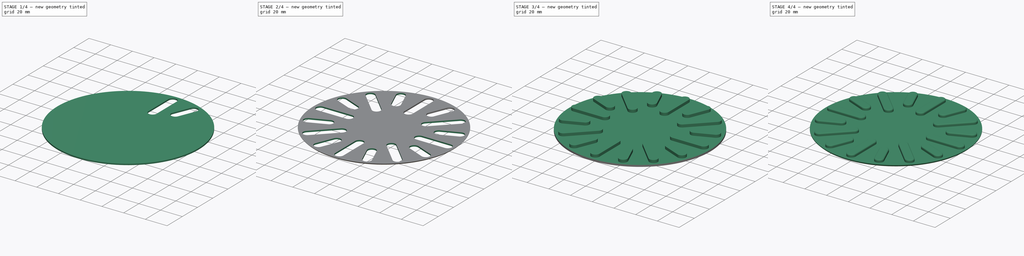
[diagram: build sequence overview — one tinted view per stage of 4, left to right]
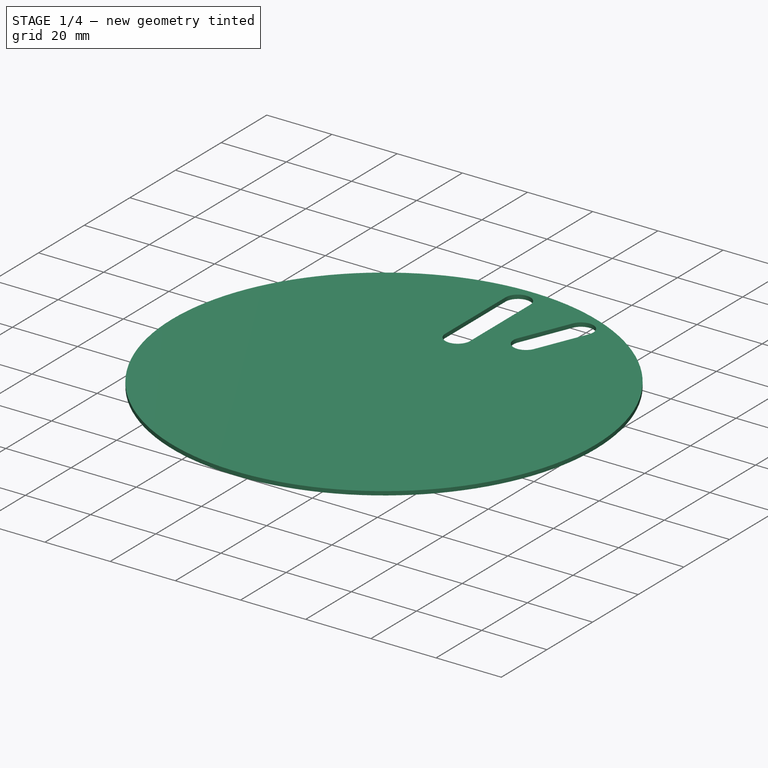
[diagram: stage 1 of 4 — iso view after this stage's code; geometry added in this stage tinted green]
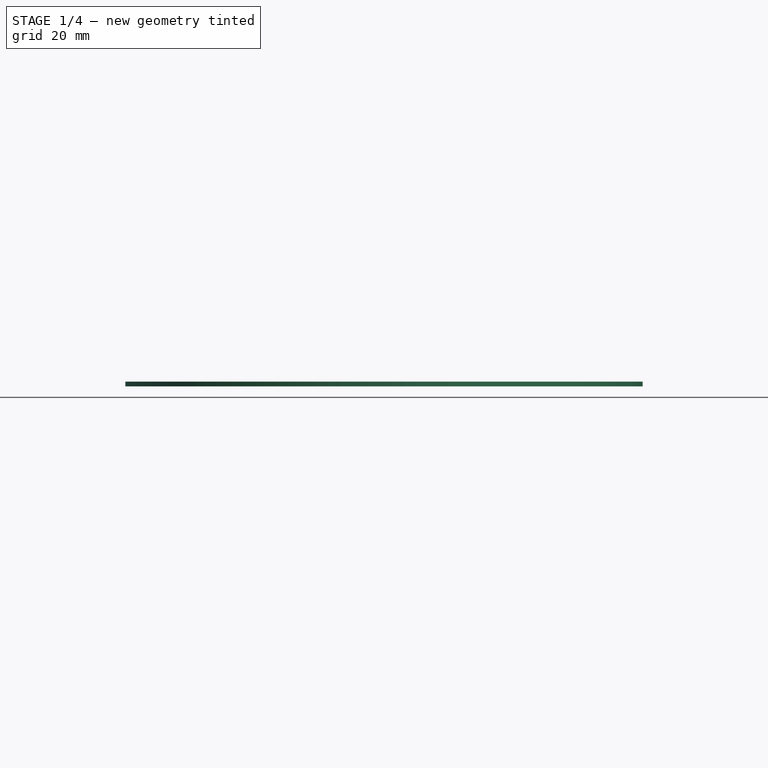
[diagram: stage 1 of 4 — front view after this stage's code; geometry added in this stage tinted green]
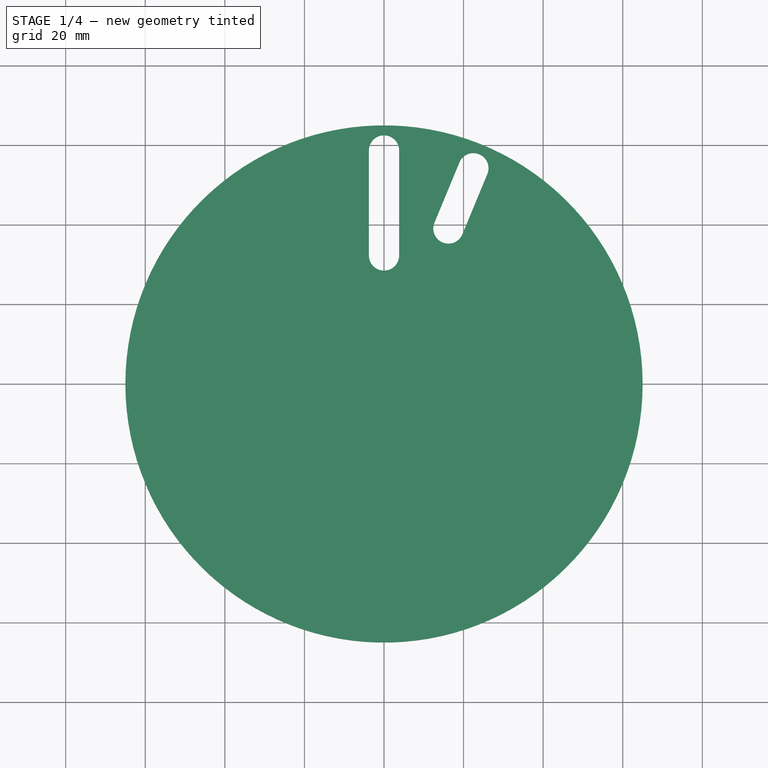
[diagram: stage 1 of 4 — top view after this stage's code; geometry added in this stage tinted green]
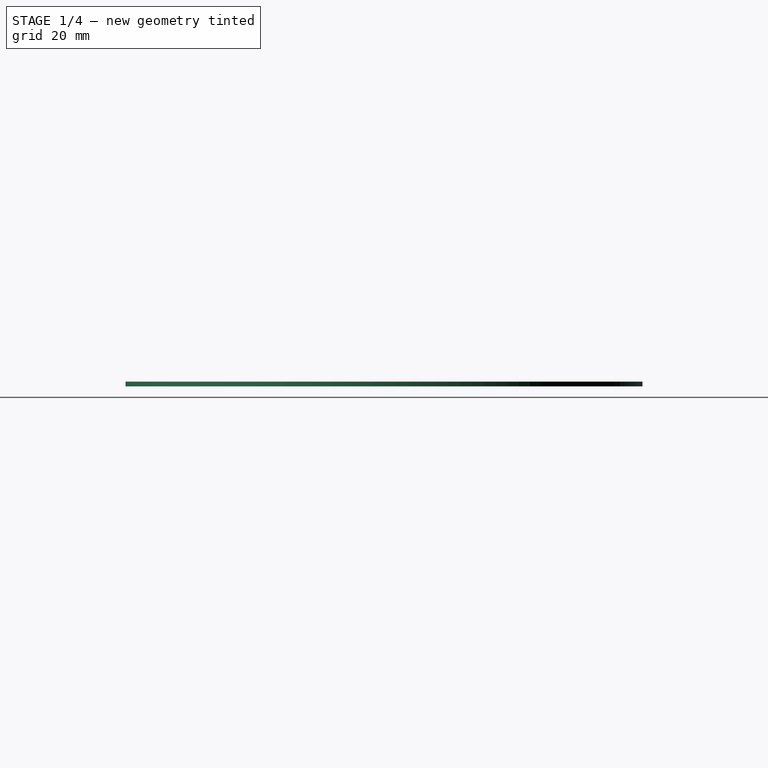
[diagram: stage 1 of 4 — right view after this stage's code; geometry added in this stage tinted green]
FCSTD DOCUMENT  (FreeCAD 0.19R24291 (Git))
Label: ShowerSinkCloser
License: All rights reserved
LicenseURL: http://en.wikipedia.org/wiki/All_rights_reserved
objects: Sketcher::SketchObject×5, PartDesign::Pad×3, PartDesign::PolarPattern×2, PartDesign::Chamfer×2, PartDesign::Body×2, PartDesign::Fillet×1, PartDesign::ShapeBinder×1, PartDesign::Pocket×1
note: 24 computed .brp shape members not serialized (recipe doc carries the construction recipe); baked Part::Feature solids carry a one-line shape summary decoded from their .brp

FEATURE [PartDesign::Body] Body
  Group = -> [Sketch,Sketch001,Pad,Sketch002,Pad001,PolarPattern,Fillet,Chamfer]
  Origin = -> Origin
  Tip = -> Chamfer
FEATURE [PartDesign::ShapeBinder] ShapeBinder
  Support = -> [Sketch]
  TraceSupport = false
FEATURE [Sketcher::SketchObject] Sketch003
  ExternalGeometry = -> [ShapeBinder]
  FullyConstrained = true
  MapMode = 5
  Support = -> [XY_Plane001]
  sketch-geometry (1):
    g0: Circle CenterX=0 CenterY=0 CenterZ=0 NormalX=0 NormalY=0 NormalZ=1 AngleXU=0 Radius=65
  constraints (2):
    c: Coincident(g0,g-1)
    c: Equal(g-3,g0)
FEATURE [PartDesign::Pad] Pad002
  Direction = (1,1,1)
  Length = 1.2
  Length2 = 100
  Profile = -> Sketch003
  Type = 0
FEATURE [Sketcher::SketchObject] Sketch004
  ExternalGeometry = -> [ShapeBinder]
  FullyConstrained = true
  MapMode = 5
  Support = -> [XY_Plane001]
  sketch-geometry (8):
    g0: ArcOfCircle CenterX=0 CenterY=58.7 CenterZ=0 NormalX=0 NormalY=0 NormalZ=1 AngleXU=0 Radius=3.8 StartAngle=0 EndAngle=3.14159
    g1: ArcOfCircle CenterX=-1e-16 CenterY=32.3 CenterZ=0 NormalX=0 NormalY=0 NormalZ=1 AngleXU=0 Radius=3.8 StartAngle=3.14159 EndAngle=6.28319
    g2: LineSegment StartX=-3.8 StartY=58.7 StartZ=0 EndX=-3.8 EndY=32.3 EndZ=0
    g3: LineSegment StartX=3.8 StartY=58.7 StartZ=0 EndX=3.8 EndY=32.3 EndZ=0
    g4: ArcOfCircle CenterX=22.4635 CenterY=54.2317 CenterZ=0 NormalX=0 NormalY=0 NormalZ=1 AngleXU=0 Radius=3.8 StartAngle=5.89049 EndAngle=9.03208
    g5: ArcOfCircle CenterX=16.1875 CenterY=39.0801 CenterZ=0 NormalX=0 NormalY=0 NormalZ=1 AngleXU=0 Radius=3.8 StartAngle=2.74889 EndAngle=5.89049
    g6: LineSegment StartX=18.9528 StartY=55.6859 StartZ=0 EndX=12.6768 EndY=40.5343 EndZ=0
    g7: LineSegment StartX=25.9743 StartY=52.7775 StartZ=0 EndX=19.6983 EndY=37.6259 EndZ=0
  constraints (16):
    c: Tangent(g0,g3) = 1.5708
    c: Tangent(g0,g2) = -1.5708
    c: Tangent(g2,g1) = -1.5708
    c: Tangent(g3,g1) = 1.5708
    c: Vertical(g2)
    c: Coincident(g0,g-3)
    c: Coincident(g1,g-4)
    c: Equal(g1,g-4)
    c: Tangent(g4,g7) = 1.5708
    c: Tangent(g4,g6) = -1.5708
    c: Tangent(g6,g5) = -1.5708
    c: Tangent(g7,g5) = 1.5708
    c: Equal(g4,g5)
    c: Coincident(g4,g-5)
    c: Coincident(g5,g-6)
    c: PointOnObject(g5,g-6)
FEATURE [PartDesign::Pocket] Pocket
  BaseFeature = -> Pad002
  Length = 5
  Length2 = 100
  Profile = -> Sketch004
  Reversed = true
  Type = 0
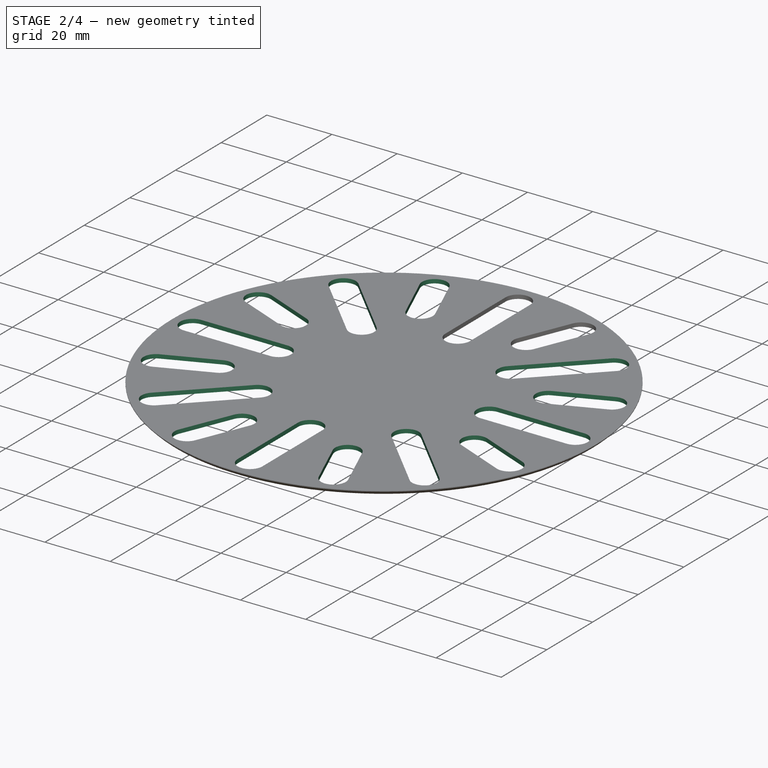
[diagram: stage 2 of 4 — iso view after this stage's code; geometry added in this stage tinted green]
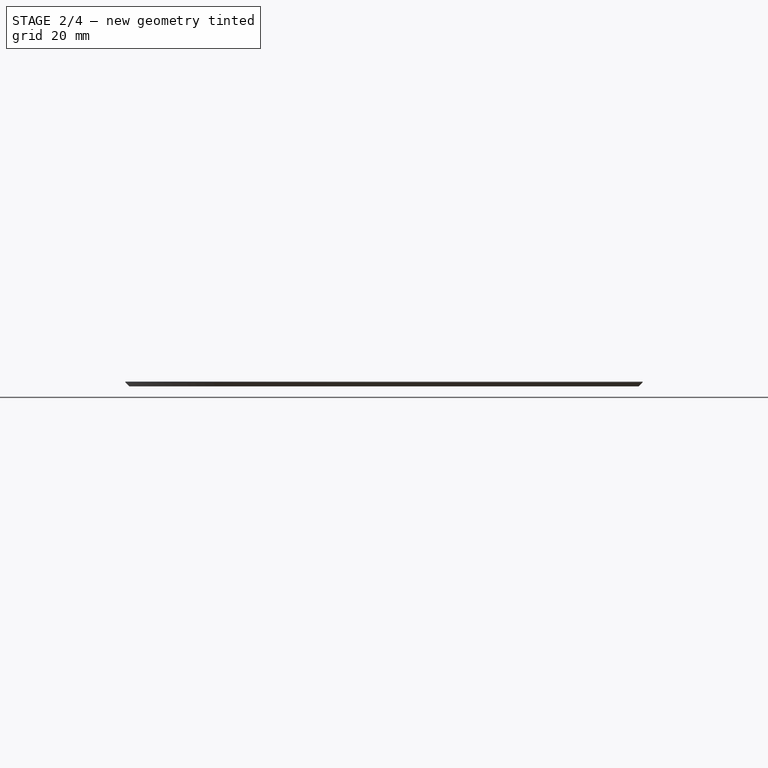
[diagram: stage 2 of 4 — front view after this stage's code; geometry added in this stage tinted green]
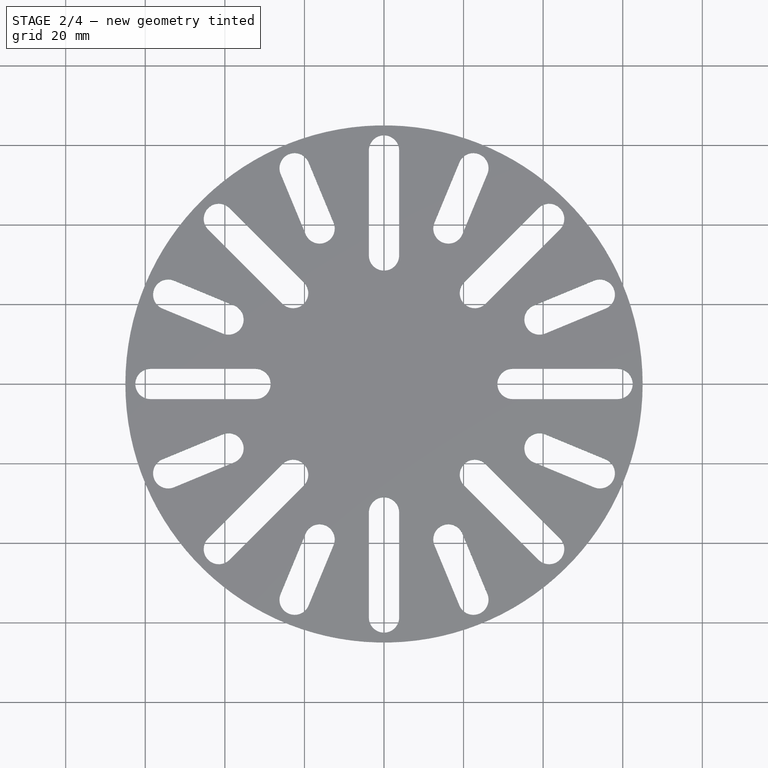
[diagram: stage 2 of 4 — top view after this stage's code; geometry added in this stage tinted green]
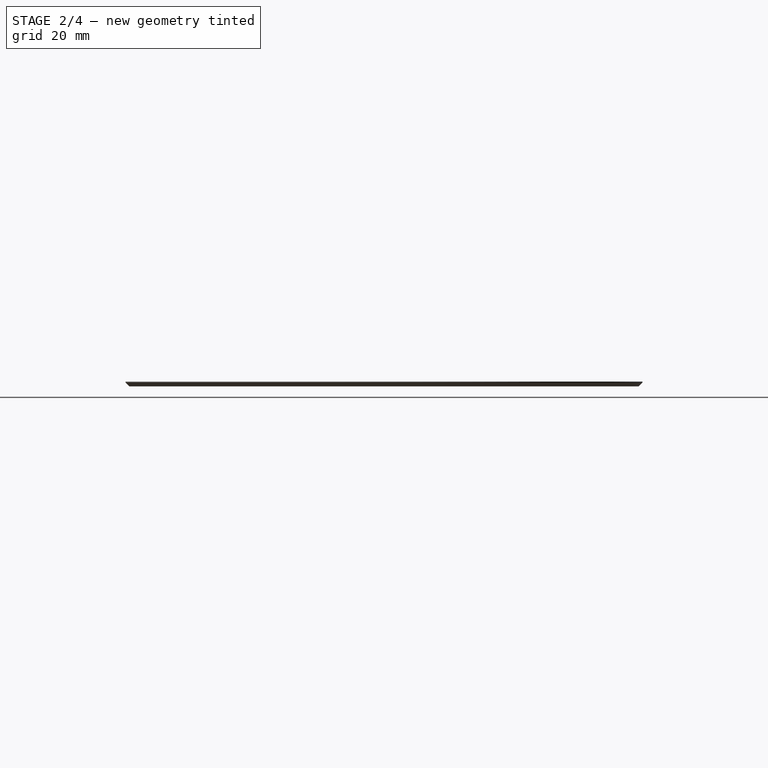
[diagram: stage 2 of 4 — right view after this stage's code; geometry added in this stage tinted green]
FEATURE [PartDesign::PolarPattern] PolarPattern001
  Angle = 360
  Axis = -> Sketch004 [N_Axis]
  BaseFeature = -> Pocket
  Occurrences = 8
  Originals = -> [Pocket]
FEATURE [PartDesign::Chamfer] Chamfer001
  Angle = 45
  Base = -> PolarPattern001 [Edge2]
  BaseFeature = -> PolarPattern001
  ChamferType = 0
  FlipDirection = false
  Size = 1
  Size2 = 1
  SupportTransform = false
FEATURE [PartDesign::Body] Body001
  Group = -> [ShapeBinder,Sketch003,Pad002,Sketch004,Pocket,PolarPattern001,Chamfer001]
  Origin = -> Origin001
  Tip = -> Chamfer001
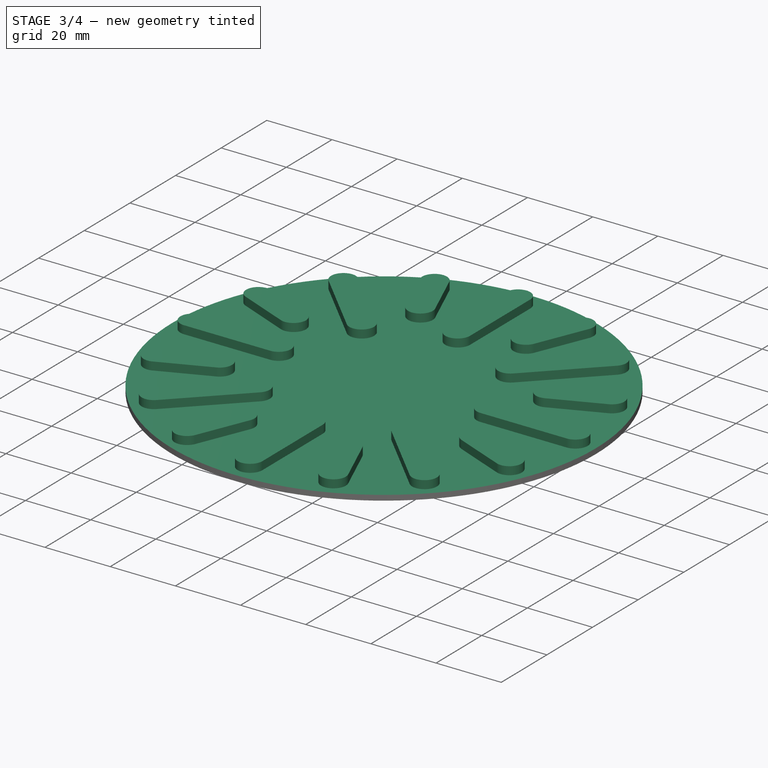
[diagram: stage 3 of 4 — iso view after this stage's code; geometry added in this stage tinted green]
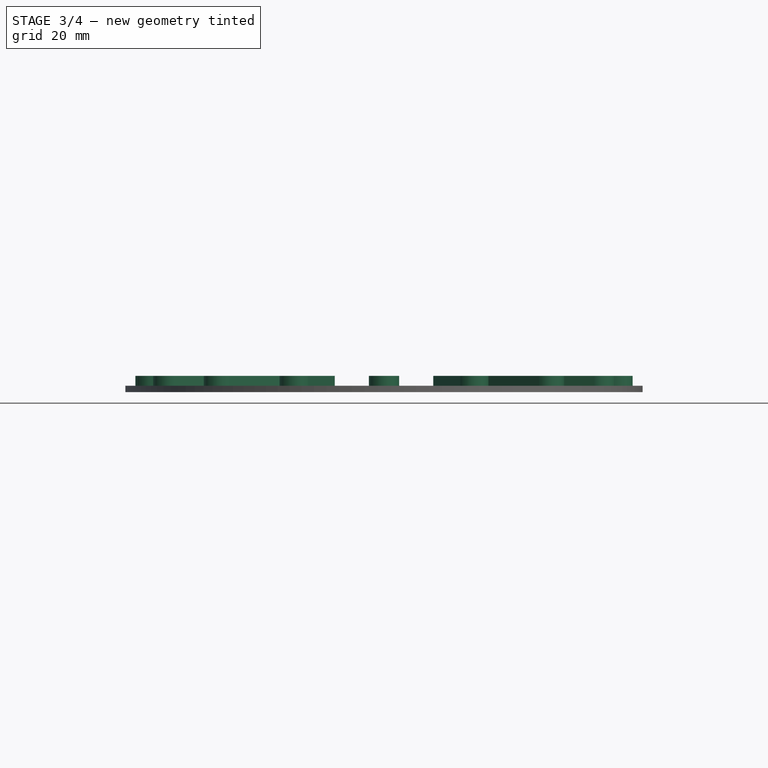
[diagram: stage 3 of 4 — front view after this stage's code; geometry added in this stage tinted green]
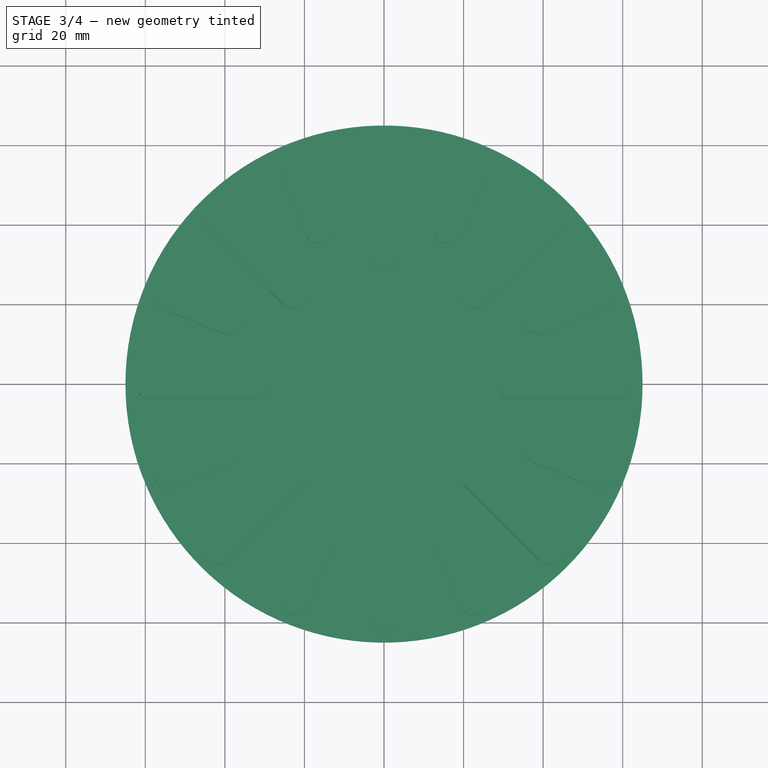
[diagram: stage 3 of 4 — top view after this stage's code; geometry added in this stage tinted green]
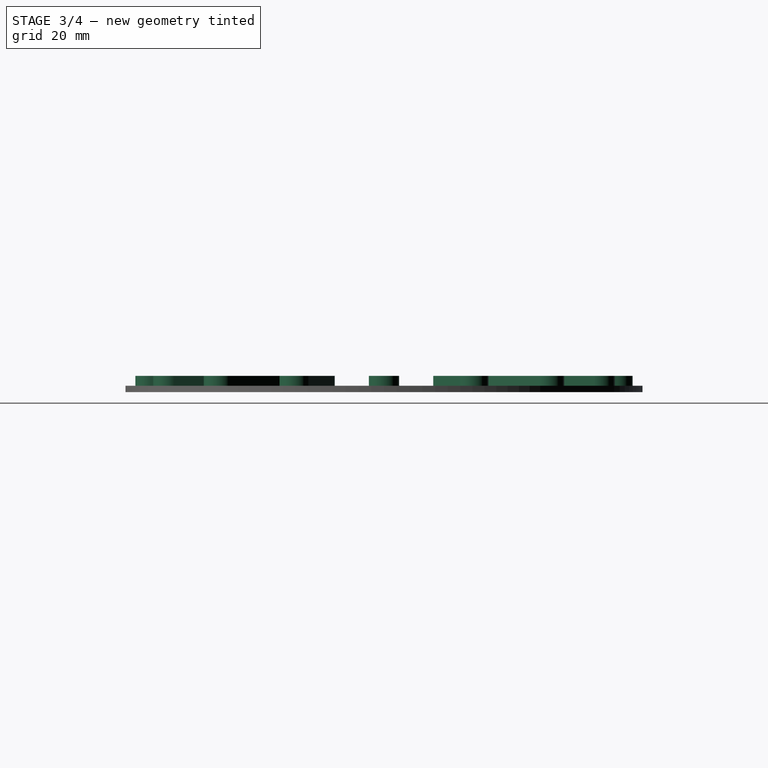
[diagram: stage 3 of 4 — right view after this stage's code; geometry added in this stage tinted green]
FEATURE [Sketcher::SketchObject] Sketch  label="Template"
  FullyConstrained = true
  MapMode = 5
  Support = -> [XY_Plane]
  sketch-geometry (14):
    g0: Circle CenterX=0 CenterY=0 CenterZ=0 NormalX=0 NormalY=0 NormalZ=1 AngleXU=0 Radius=65
    g1: LineSegment StartX=0 StartY=65 StartZ=0 EndX=0 EndY=-65 EndZ=0
    g2: LineSegment StartX=24.8744 StartY=60.0522 StartZ=0 EndX=-24.8744 EndY=-60.0522 EndZ=0
    g3: Circle CenterX=0 CenterY=0 CenterZ=0 NormalX=0 NormalY=0 NormalZ=1 AngleXU=0 Radius=62.5
    g4: ArcOfCircle CenterX=0 CenterY=58.7 CenterZ=0 NormalX=0 NormalY=0 NormalZ=1 AngleXU=0 Radius=3.8 StartAngle=0 EndAngle=3.14159
    g5: ArcOfCircle CenterX=-1e-16 CenterY=32.3 CenterZ=0 NormalX=0 NormalY=0 NormalZ=1 AngleXU=0 Radius=3.8 StartAngle=3.14159 EndAngle=6.28319
    g6: LineSegment StartX=-3.8 StartY=58.7 StartZ=0 EndX=-3.8 EndY=32.3 EndZ=0
    g7: LineSegment StartX=3.8 StartY=58.7 StartZ=0 EndX=3.8 EndY=32.3 EndZ=0
    g8: ArcOfCircle CenterX=22.4635 CenterY=54.2317 CenterZ=0 NormalX=0 NormalY=0 NormalZ=1 AngleXU=0 Radius=3.8 StartAngle=5.89049 EndAngle=9.03208
    g9: ArcOfCircle CenterX=16.1875 CenterY=39.0801 CenterZ=0 NormalX=0 NormalY=0 NormalZ=1 AngleXU=0 Radius=3.8 StartAngle=2.74889 EndAngle=5.89049
    g10: LineSegment StartX=18.9528 StartY=55.6859 StartZ=0 EndX=12.6768 EndY=40.5343 EndZ=0
    g11: LineSegment StartX=25.9743 StartY=52.7775 StartZ=0 EndX=19.6983 EndY=37.6259 EndZ=0
    g12: Circle CenterX=0 CenterY=0 CenterZ=0 NormalX=0 NormalY=0 NormalZ=1 AngleXU=0 Radius=28.5
    g13: Circle CenterX=0 CenterY=0 CenterZ=0 NormalX=0 NormalY=0 NormalZ=1 AngleXU=0 Radius=38.5
  constraints (36):
    c: Radius(g0) = 65
    c: PointOnObject(g1,g0)
    c: PointOnObject(g1,g0)
    c: Vertical(g1)
    c: PointOnObject(g0,g1)
    c: PointOnObject(g2,g0)
    c: PointOnObject(g2,g0)
    c: PointOnObject(g0,g2)
    c: Angle(g1,g2) = 2.74889
    c: Coincident(g3,g0)
    c: Radius(g3) = 62.5
    c: Tangent(g4,g7) = 1.5708
    c: Tangent(g4,g6) = -1.5708
    c: Tangent(g6,g5) = -1.5708
    c: Tangent(g7,g5) = 1.5708
    c: Vertical(g6)
    c: Equal(g4,g5)
    c: PointOnObject(g4,g1)
    c: Tangent(g8,g11) = 1.5708
    c: Tangent(g8,g10) = -1.5708
    c: Tangent(g10,g9) = -1.5708
    c: Tangent(g11,g9) = 1.5708
    c: Equal(g8,g9)
    c: PointOnObject(g8,g2)
    c: PointOnObject(g9,g2)
    c: Tangent(g4,g3)
    c: Tangent(g8,g3)
    c: Equal(g4,g8)
    c: Radius(g4) = 3.8
    c: Coincident(g12,g0)
    c: Radius(g12) = 28.5
    c: Tangent(g5,g12)
    c: Coincident(g13,g0)
    c: Radius(g13) = 38.5
    c: Tangent(g9,g13)
    c: Coincident(g0,g-1)
FEATURE [Sketcher::SketchObject] Sketch001
  ExternalGeometry = -> [Sketch]
  FullyConstrained = true
  MapMode = 5
  Support = -> [XY_Plane]
  sketch-geometry (1):
    g0: Circle CenterX=0 CenterY=0 CenterZ=0 NormalX=0 NormalY=0 NormalZ=1 AngleXU=0 Radius=65
  constraints (2):
    c: Coincident(g0,g-1)
    c: Tangent(g0,g-3)
FEATURE [PartDesign::Pad] Pad
  Direction = (1,1,1)
  Length = 1.6
  Length2 = 100
  Profile = -> Sketch001
  Type = 0
FEATURE [Sketcher::SketchObject] Sketch002
  AttachmentOffset = pos=(0,0,1.6) rot=(0,0,1;0rad)
  ExternalGeometry = -> [Sketch]
  FullyConstrained = true
  MapMode = 5
  Placement = pos=(0,0,1.6) rot=(0,0,1;0rad)
  Support = -> [XY_Plane]
  expr: .AttachmentOffset.Base.z = Sketch001.AttachmentOffset.Base.z + Pad.Length
  sketch-geometry (8):
    g0: ArcOfCircle CenterX=0 CenterY=58.7 CenterZ=0 NormalX=0 NormalY=0 NormalZ=1 AngleXU=0 Radius=3.8 StartAngle=-4.09e-14 EndAngle=3.14159
    g1: ArcOfCircle CenterX=-1e-16 CenterY=32.3 CenterZ=0 NormalX=0 NormalY=0 NormalZ=1 AngleXU=0 Radius=3.8 StartAngle=3.14159 EndAngle=6.28319
    g2: LineSegment StartX=-3.8 StartY=58.7 StartZ=0 EndX=-3.8 EndY=32.3 EndZ=0
    g3: LineSegment StartX=3.8 StartY=58.7 StartZ=0 EndX=3.8 EndY=32.3 EndZ=0
    g4: ArcOfCircle CenterX=22.4635 CenterY=54.2317 CenterZ=0 NormalX=0 NormalY=0 NormalZ=1 AngleXU=0 Radius=3.8 StartAngle=5.89049 EndAngle=9.03208
    g5: ArcOfCircle CenterX=16.1875 CenterY=39.0801 CenterZ=0 NormalX=0 NormalY=0 NormalZ=1 AngleXU=0 Radius=3.8 StartAngle=2.74889 EndAngle=5.89049
    g6: LineSegment StartX=18.9528 StartY=55.6859 StartZ=0 EndX=12.6768 EndY=40.5343 EndZ=0
    g7: LineSegment StartX=25.9743 StartY=52.7775 StartZ=0 EndX=19.6983 EndY=37.6259 EndZ=0
  constraints (15):
    c: Tangent(g0,g3) = 1.5708
    c: Tangent(g0,g2) = -1.5708
    c: Tangent(g2,g1) = -1.5708
    c: Vertical(g2)
    c: Coincident(g0,g-3)
    c: Coincident(g1,g-4)
    c: Coincident(g1,g-4)
    c: Tangent(g4,g7) = 1.5708
    c: Tangent(g4,g6) = -1.5708
    c: Tangent(g6,g5) = -1.5708
    c: Tangent(g7,g5) = 1.5708
    c: Coincident(g4,g-6)
    c: Coincident(g5,g-5)
    c: Coincident(g5,g-5)
    c: Coincident(g1,g3)
FEATURE [PartDesign::Pad] Pad001
  BaseFeature = -> Pad
  Direction = (1,1,1)
  Length = 2.5
  Length2 = 100
  Profile = -> Sketch002
  Type = 0
FEATURE [PartDesign::PolarPattern] PolarPattern
  Angle = 360
  Axis = -> Sketch002 [N_Axis]
  BaseFeature = -> Pad001
  Occurrences = 8
  Originals = -> [Pad001]
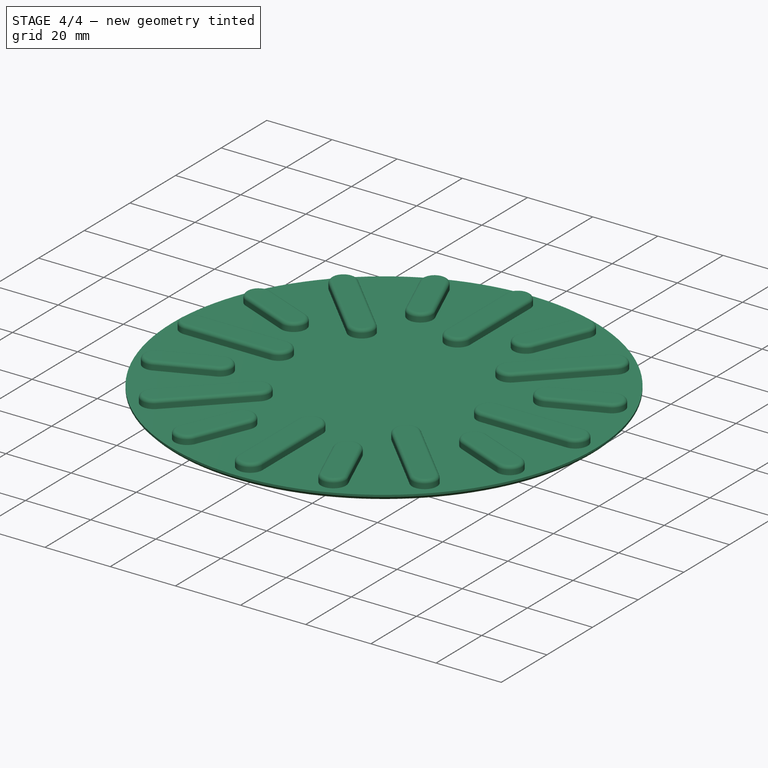
[diagram: stage 4 of 4 — iso view after this stage's code; geometry added in this stage tinted green]
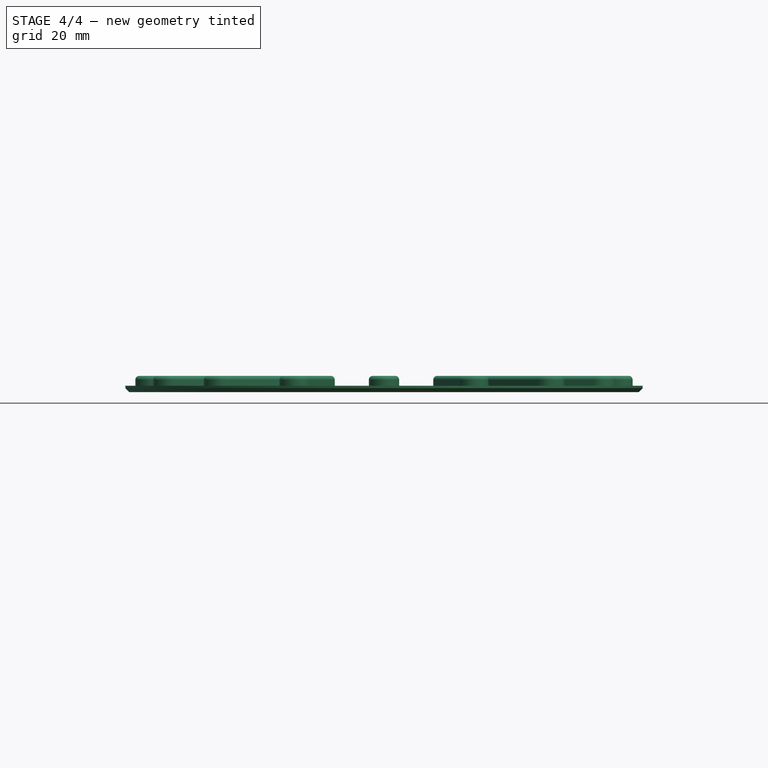
[diagram: stage 4 of 4 — front view after this stage's code; geometry added in this stage tinted green]
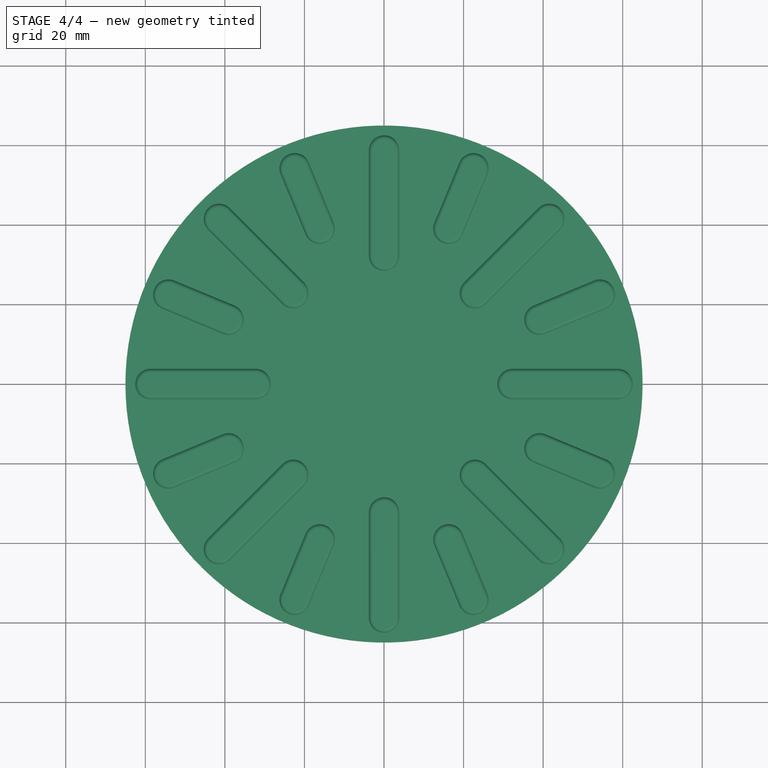
[diagram: stage 4 of 4 — top view after this stage's code; geometry added in this stage tinted green]
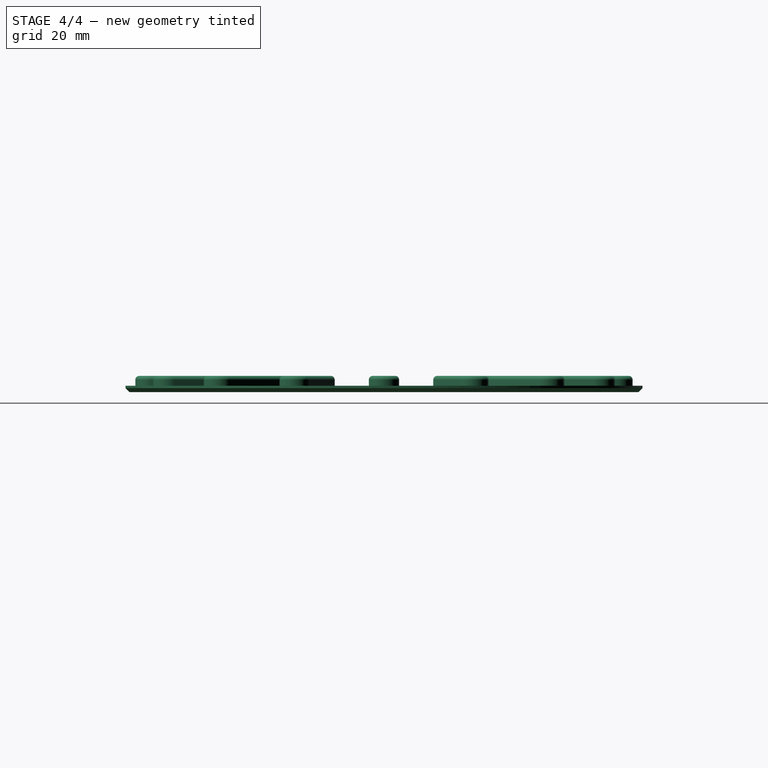
[diagram: stage 4 of 4 — right view after this stage's code; geometry added in this stage tinted green]
FEATURE [PartDesign::Fillet] Fillet
  Base = -> PolarPattern [Face81,Face79,Face78,Face77,Face76,Face71,Face68,Face69,Face70,Face72,Face73,Face74,Face75,Face80,Face83,Face82]
  BaseFeature = -> PolarPattern
  Radius = 1
  SupportTransform = false
FEATURE [PartDesign::Chamfer] Chamfer
  Angle = 45
  Base = -> Fillet [Edge83]
  BaseFeature = -> Fillet
  ChamferType = 0
  FlipDirection = false
  Size = 1
  Size2 = 1
  SupportTransform = false
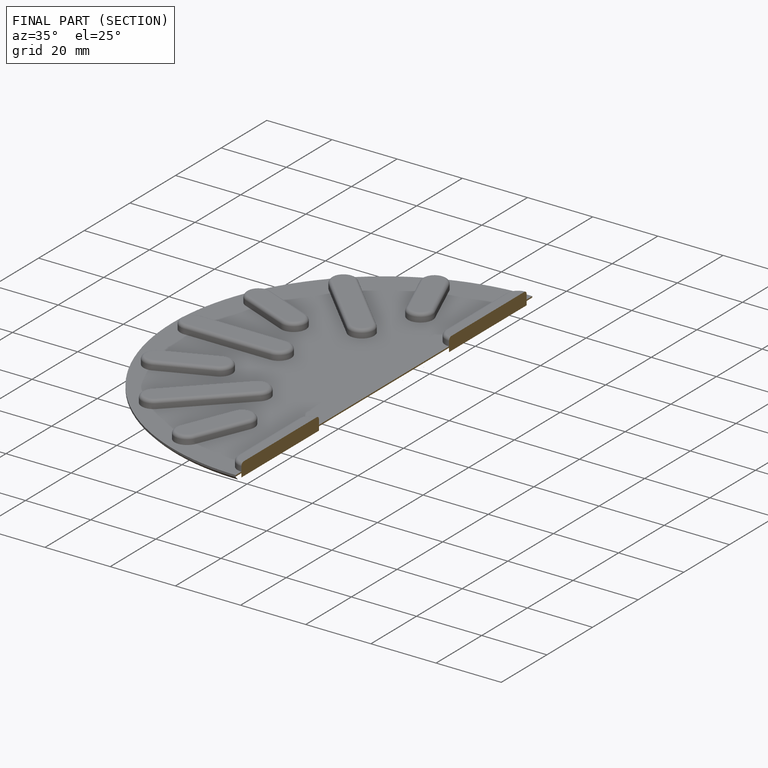
[diagram: finished part — half-section view (interior)]
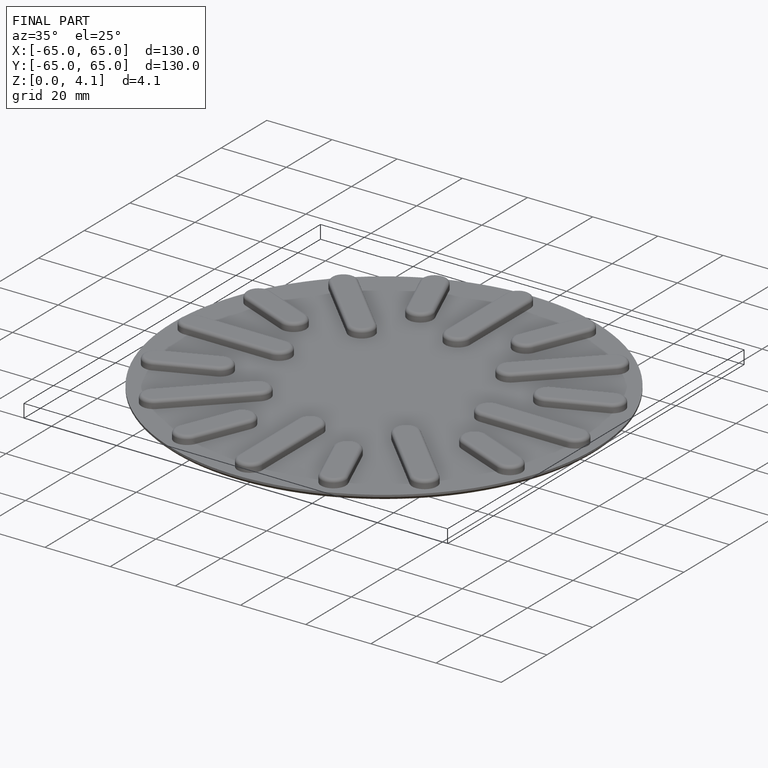
[diagram: finished part — iso view with bounding-box wireframe]
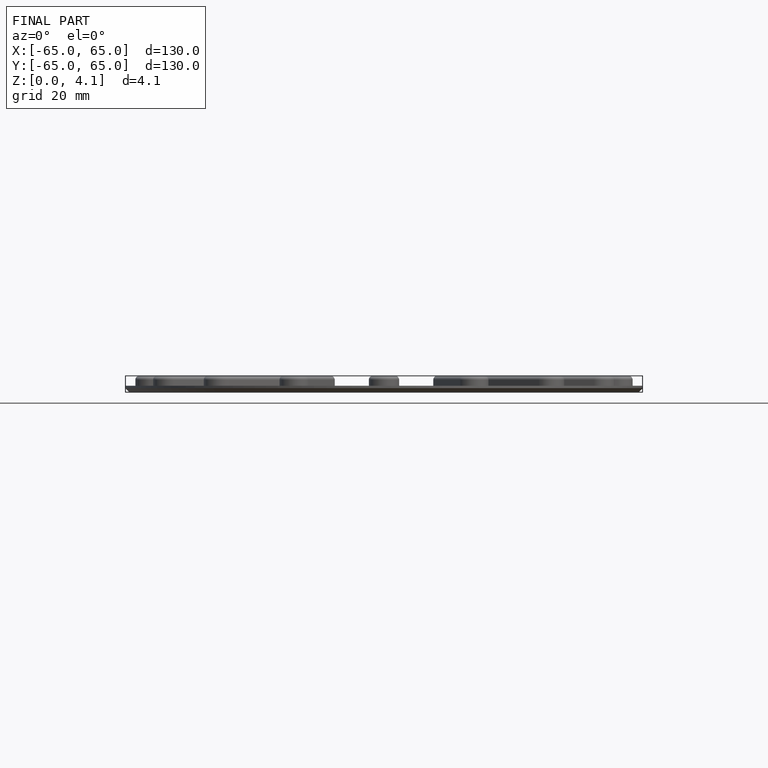
[diagram: finished part — front view with bounding-box wireframe]
